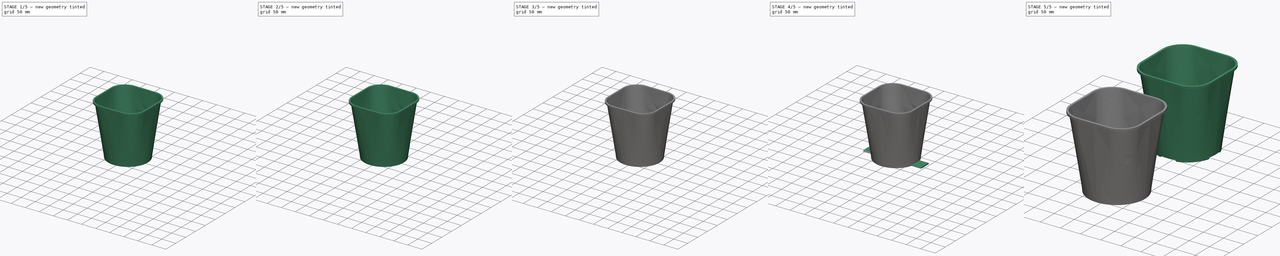
[diagram: build sequence overview — one tinted view per stage of 5, left to right]
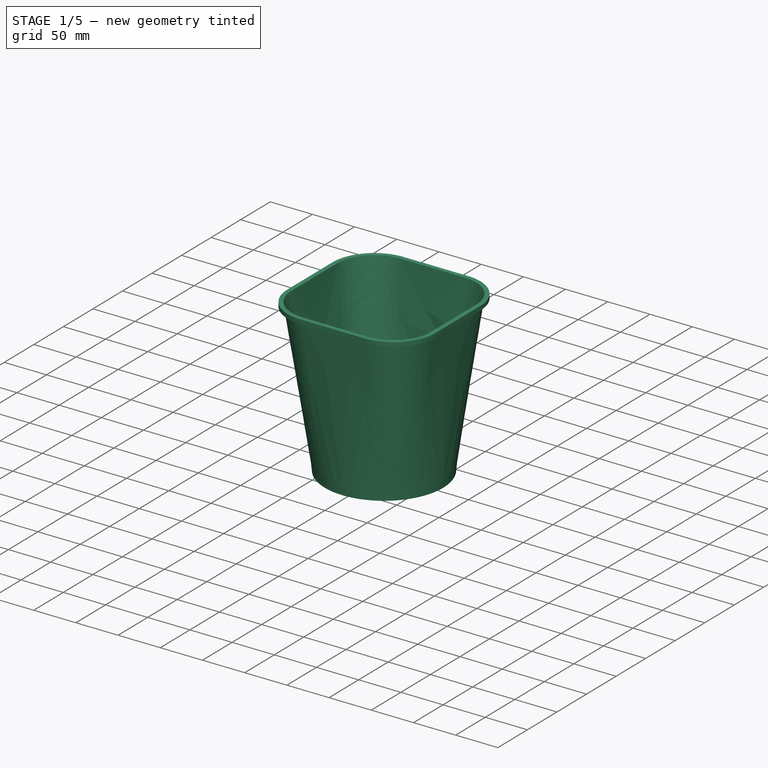
[diagram: stage 1 of 5 — iso view after this stage's code; geometry added in this stage tinted green]
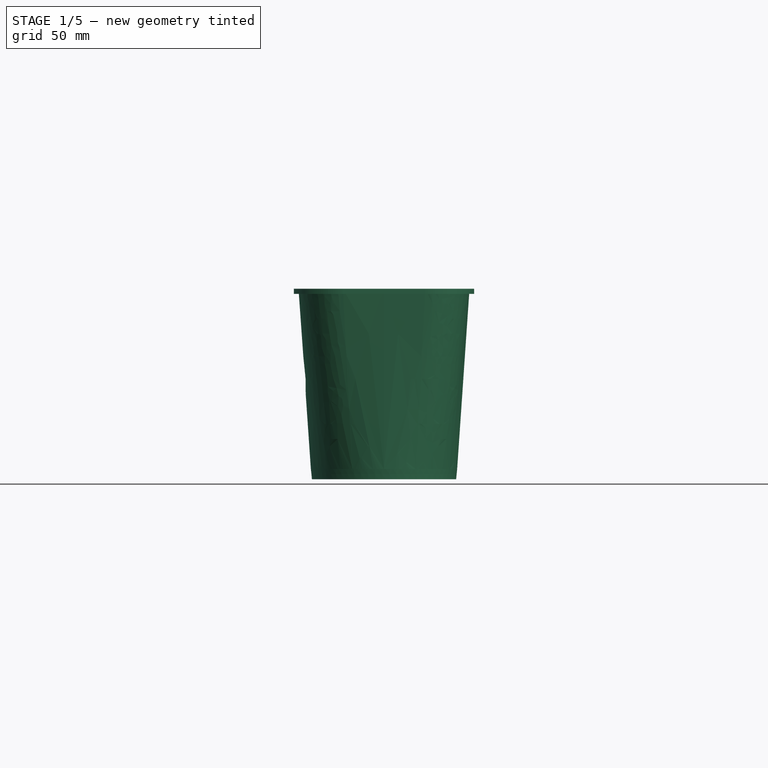
[diagram: stage 1 of 5 — front view after this stage's code; geometry added in this stage tinted green]
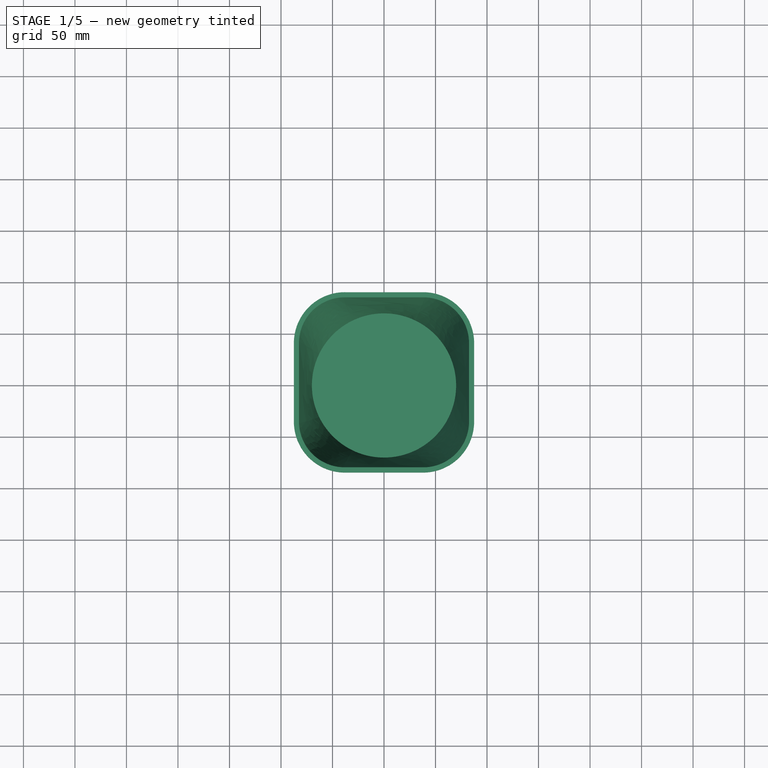
[diagram: stage 1 of 5 — top view after this stage's code; geometry added in this stage tinted green]
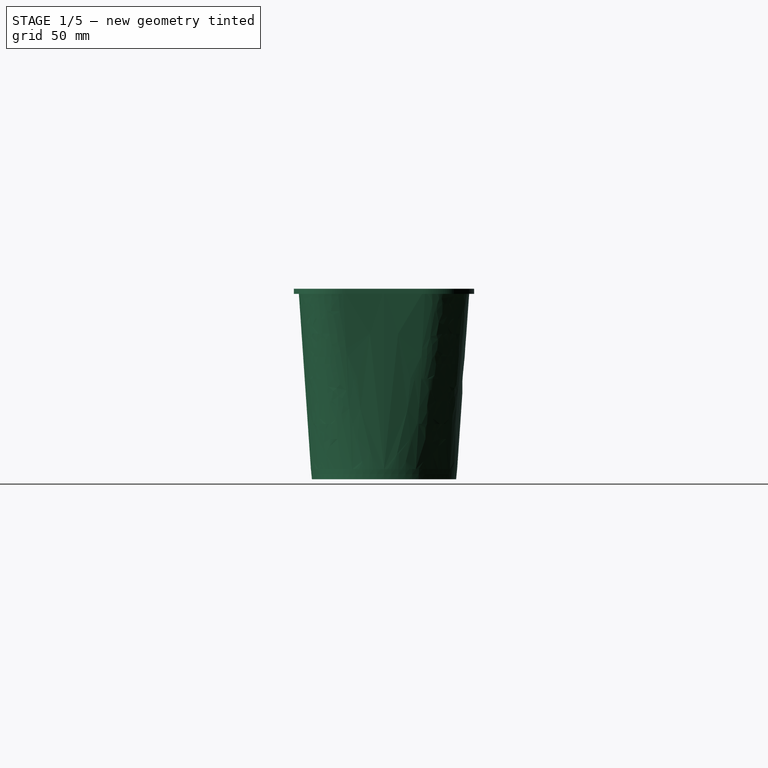
[diagram: stage 1 of 5 — right view after this stage's code; geometry added in this stage tinted green]
FCSTD DOCUMENT  (FreeCAD 0.20RUnknown)
Label: LargeFlowerPot_175x185
License: All rights reserved
LicenseURL: http://en.wikipedia.org/wiki/All_rights_reserved
objects: Sketcher::SketchObject×12, Part::Face×8, Part::Extrusion×7, Part::Cut×7, Part::Cone×6, Part::MultiCommon×2, Part::Fuse×2, Part::Loft×2, Part::Compound×2, Spreadsheet::Sheet×1
note: 48 computed .brp shape members not serialized (recipe doc carries the construction recipe); baked Part::Feature solids carry a one-line shape summary decoded from their .brp

FEATURE [Sketcher::SketchObject] Sketch002
  FullyConstrained = true
  MapMode = 5
  Placement = pos=(0,0,185) rot=(1,0,0;3.14159rad)
  expr: Constraints[35] = Spreadsheet.upper_flat
  expr: Constraints[36] = Spreadsheet.upper_flat
  expr: Constraints[37] = Spreadsheet.upper_width - Spreadsheet.wall * 2
  expr: Constraints[3] = Spreadsheet.upper_radius - Spreadsheet.wall
  sketch-geometry (12):
    g0: ArcOfCircle CenterX=-38.0431 CenterY=38.0431 CenterZ=0 NormalX=0 NormalY=0 NormalZ=1 AngleXU=0 Radius=44.5 StartAngle=1.61479 EndAngle=3.0976
    g1: ArcOfCircle CenterX=38.0431 CenterY=38.0431 CenterZ=0 NormalX=0 NormalY=0 NormalZ=1 AngleXU=0 Radius=44.5 StartAngle=0.0439906 EndAngle=1.52681
    g2: ArcOfCircle CenterX=38.0431 CenterY=-38.0431 CenterZ=0 NormalX=0 NormalY=0 NormalZ=1 AngleXU=0 Radius=44.5 StartAngle=4.75638 EndAngle=6.23919
    g3: ArcOfCircle CenterX=-38.0431 CenterY=-38.0431 CenterZ=0 NormalX=0 NormalY=0 NormalZ=1 AngleXU=0 Radius=44.5 StartAngle=3.18558 EndAngle=4.6684
    g4: LineSegment StartX=-82.5 StartY=40 StartZ=0 EndX=-82.5 EndY=-40 EndZ=0
    g5: LineSegment StartX=-40 StartY=-82.5 StartZ=0 EndX=40 EndY=-82.5 EndZ=0
    g6: LineSegment StartX=-82.5 StartY=40 StartZ=0 EndX=82.5 EndY=40 EndZ=0
    g7: LineSegment StartX=40 StartY=82.5 StartZ=0 EndX=40 EndY=-82.5 EndZ=0
    g8: LineSegment StartX=-40 StartY=82.5 StartZ=0 EndX=0 EndY=82.5 EndZ=0
    g9: LineSegment StartX=0 StartY=82.5 StartZ=0 EndX=40 EndY=82.5 EndZ=0
    g10: LineSegment StartX=82.5 StartY=-40 StartZ=0 EndX=82.5 EndY=0 EndZ=0
    g11: LineSegment StartX=82.5 StartY=0 StartZ=0 EndX=82.5 EndY=40 EndZ=0
  constraints (38):
    c: Equal(g3,g0)
    c: Equal(g3,g1)
    c: Equal(g3,g2)
    c: Radius(g3) = 44.5
    c: Vertical(g0,g3)
    c: Vertical(g1,g2)
    c: Horizontal(g0,g1)
    c: Horizontal(g2,g3)
    c: Coincident(g8,g0)
    c: Coincident(g9,g1)
    c: Coincident(g4,g0)
    c: Coincident(g4,g3)
    c: Vertical(g4)
    c: Coincident(g5,g3)
    c: Coincident(g5,g2)
    c: Horizontal(g5)
    c: Coincident(g10,g2)
    c: Coincident(g11,g1)
    c: Coincident(g6,g0)
    c: Coincident(g6,g1)
    c: Horizontal(g6)
    c: Coincident(g7,g1)
    c: Coincident(g7,g2)
    c: Vertical(g7)
    c: Equal(g7,g6)
    c: Coincident(g8,g9)
    c: Horizontal(g8)
    c: Horizontal(g9)
    c: Coincident(g10,g11)
    c: Vertical(g10)
    c: Vertical(g11)
    c: PointOnObject(g10,g-1)
    c: PointOnObject(g8,g-2)
    c: Equal(g8,g9)
    c: Equal(g11,g10)
    c: Distance(g0,g1) = 80
    c: Distance(g2,g1) = 80
    c: Distance(g6) = 165
FEATURE [Sketcher::SketchObject] Sketch003
  FullyConstrained = true
  MapMode = 5
  Placement = pos=(0,0,185) rot=(1,0,0;3.14159rad)
  expr: Constraints[24] = Spreadsheet.upper_width
  expr: Constraints[37] = Spreadsheet.upper_flat
  expr: Constraints[7] = Spreadsheet.upper_radius
  sketch-geometry (12):
    g0: ArcOfCircle CenterX=-38.0426 CenterY=38.0426 CenterZ=0 NormalX=0 NormalY=0 NormalZ=1 AngleXU=0 Radius=45 StartAngle=1.61431 EndAngle=3.09808
    g1: ArcOfCircle CenterX=38.0426 CenterY=38.0426 CenterZ=0 NormalX=0 NormalY=0 NormalZ=1 AngleXU=0 Radius=45 StartAngle=0.0435117 EndAngle=1.52728
    g2: ArcOfCircle CenterX=38.0426 CenterY=-38.0426 CenterZ=0 NormalX=0 NormalY=0 NormalZ=1 AngleXU=0 Radius=45 StartAngle=4.7559 EndAngle=6.23967
    g3: ArcOfCircle CenterX=-38.0426 CenterY=-38.0426 CenterZ=0 NormalX=0 NormalY=0 NormalZ=1 AngleXU=0 Radius=45 StartAngle=3.1851 EndAngle=4.66888
    g4: LineSegment StartX=40 StartY=-83 StartZ=0 EndX=-40 EndY=-83 EndZ=0
    g5: LineSegment StartX=-83 StartY=40 StartZ=0 EndX=-83 EndY=-40 EndZ=0
    g6: LineSegment StartX=40 StartY=83 StartZ=0 EndX=40 EndY=-83 EndZ=0
    g7: LineSegment StartX=-83 StartY=40 StartZ=0 EndX=83 EndY=40 EndZ=0
    g8: LineSegment StartX=83 StartY=40 StartZ=0 EndX=83 EndY=0 EndZ=0
    g9: LineSegment StartX=83 StartY=0 StartZ=0 EndX=83 EndY=-40 EndZ=0
    g10: LineSegment StartX=-40 StartY=83 StartZ=0 EndX=0 EndY=83 EndZ=0
    g11: LineSegment StartX=0 StartY=83 StartZ=0 EndX=40 EndY=83 EndZ=0
  constraints (38):
    c: Vertical(g0,g3)
    c: Vertical(g1,g2)
    c: Horizontal(g0,g1)
    c: Horizontal(g2,g3)
    c: Equal(g0,g1)
    c: Equal(g0,g2)
    c: Equal(g0,g3)
    c: Radius(g0) = 45
    c: Coincident(g10,g0)
    c: Coincident(g11,g1)
    c: Coincident(g8,g1)
    c: Coincident(g9,g2)
    c: Coincident(g4,g2)
    c: Coincident(g4,g3)
    c: Horizontal(g4)
    c: Coincident(g5,g0)
    c: Coincident(g5,g3)
    c: Vertical(g5)
    c: Equal(g5,g4)
    c: Coincident(g6,g1)
    c: Coincident(g6,g2)
    c: Coincident(g7,g0)
    c: Coincident(g7,g1)
    c: Equal(g7,g6)
    c: Distance(g7) = 166
    c: Coincident(g8,g9)
    c: Vertical(g8)
    c: Vertical(g9)
    c: Coincident(g10,g11)
    c: Horizontal(g10)
    c: Horizontal(g11)
    c: PointOnObject(g10,g-2)
    c: PointOnObject(g8,g-1)
    c: Equal(g8,g9)
    c: Equal(g11,g10)
    c: Horizontal(g1,g0)
    c: Vertical(g2,g1)
    c: Distance(g0,g1) = 80
FEATURE [Sketcher::SketchObject] Sketch004
  FullyConstrained = true
  MapMode = 5
  Placement = pos=(0,0,185) rot=(1,0,0;3.14159rad)
  expr: Constraints[22] = Spreadsheet.upper_width + Spreadsheet.upper_width_rim * 2
  expr: Constraints[3] = Spreadsheet.upper_radius + Spreadsheet.upper_width_rim
  sketch-geometry (12):
    g0: ArcOfCircle CenterX=-38 CenterY=38.0808 CenterZ=0 NormalX=0 NormalY=0 NormalZ=1 AngleXU=0 Radius=49.5 StartAngle=1.61121 EndAngle=3.14241
    g1: ArcOfCircle CenterX=38 CenterY=38.0808 CenterZ=0 NormalX=0 NormalY=0 NormalZ=1 AngleXU=0 Radius=49.5 StartAngle=6.28237 EndAngle=7.81357
    g2: ArcOfCircle CenterX=38 CenterY=-38 CenterZ=0 NormalX=0 NormalY=0 NormalZ=1 AngleXU=0 Radius=49.5 StartAngle=4.7528 EndAngle=6.28237
    g3: ArcOfCircle CenterX=-38 CenterY=-38 CenterZ=0 NormalX=0 NormalY=0 NormalZ=1 AngleXU=0 Radius=49.5 StartAngle=3.14078 EndAngle=4.7528
    g4: LineSegment StartX=40 StartY=-87.4596 StartZ=0 EndX=-36 EndY=-87.4596 EndZ=0
    g5: LineSegment StartX=-87.5 StartY=-37.9596 StartZ=0 EndX=-87.5 EndY=38.0404 EndZ=0
    g6: LineSegment StartX=-87.5 StartY=38.0404 StartZ=0 EndX=87.5 EndY=38.0404 EndZ=0
    g7: LineSegment StartX=40 StartY=87.5404 StartZ=0 EndX=40 EndY=-87.4596 EndZ=0
    g8: LineSegment StartX=87.5 StartY=38.0404 StartZ=0 EndX=87.5 EndY=0 EndZ=0
    g9: LineSegment StartX=87.5 StartY=0 StartZ=0 EndX=87.5 EndY=-38.0404 EndZ=0
    g10: LineSegment StartX=-40 StartY=87.5404 StartZ=0 EndX=0 EndY=87.5404 EndZ=0
    g11: LineSegment StartX=0 StartY=87.5404 StartZ=0 EndX=40 EndY=87.5404 EndZ=0
  constraints (38):
    c: Equal(g0,g1)
    c: Equal(g0,g2)
    c: Equal(g0,g3)
    c: Radius(g0) = 49.5
    c: Coincident(g10,g0)
    c: Coincident(g11,g1)
    c: Coincident(g8,g1)
    c: Coincident(g9,g2)
    c: Coincident(g4,g2)
    c: Coincident(g4,g3)
    c: Horizontal(g4)
    c: Coincident(g5,g3)
    c: Coincident(g5,g0)
    c: Vertical(g5)
    c: Equal(g5,g4)
    c: Coincident(g6,g0)
    c: Coincident(g6,g1)
    c: Coincident(g7,g1)
    c: Coincident(g7,g2)
    c: Vertical(g7)
    c: Horizontal(g6)
    c: Equal(g6,g7)
    c: Distance(g6) = 175
    c: Coincident(g8,g9)
    c: Vertical(g8)
    c: Vertical(g9)
    c: Coincident(g10,g11)
    c: Horizontal(g10)
    c: Horizontal(g11)
    c: Distance(g10,g11) = 80
    c: Equal(g11,g10)
    c: Equal(g8,g9)
    c: PointOnObject(g10,g-2)
    c: PointOnObject(g8,g-1)
    c: Horizontal(g0,g1)
    c: Horizontal(g2,g3)
    c: Vertical(g0,g3)
    c: Vertical(g2,g1)
FEATURE [Sketcher::SketchObject] Sketch006
  FullyConstrained = false
  MapMode = 5
  Placement = pos=(0,0,10) rot=(0,0,1;0rad)
  sketch-geometry (4):
    g0: Circle CenterX=0 CenterY=0 CenterZ=0 NormalX=0 NormalY=0 NormalZ=1 AngleXU=0 Radius=71
    g1: Circle CenterX=0 CenterY=0 CenterZ=0 NormalX=0 NormalY=0 NormalZ=1 AngleXU=0 Radius=70
    g2: GeomPoint X=71 Y=0 Z=0
    g3: GeomPoint X=70 Y=0 Z=0
  constraints (6):
    c: Coincident(g0,g-1)
    c: Coincident(g1,g0)
    c: PointOnObject(g2,g0)
    c: PointOnObject(g3,g1)
    c: PointOnObject(g3,g-1)
    c: PointOnObject(g2,g-1)
FEATURE [Part::Face] Face003
  FaceMakerClass = Part::FaceMakerBullseye
  Sources = -> [Sketch006]
FEATURE [Part::Cone] Cone002
  Angle = 360
  AttacherType = Attacher::AttachEngine3D
  Height = 10
  Radius1 = 70
  Radius2 = 71
FEATURE [Part::Cone] Cone003
  Angle = 360
  AttacherType = Attacher::AttachEngine3D
  Height = 9
  Placement = pos=(0,0,1) rot=(0,0,1;0rad)
  Radius1 = 69
  Radius2 = 70
FEATURE [Spreadsheet::Sheet] Spreadsheet
  cells = A1=Hole Diameter; B1(hole_diameter)==8mm; A2=Upper Width; B2(upper_width)==166mm; A3=Wall Thickness; B3(wall)==0.5mm; A4=Corner Arch; B4(corner_arch)==75°; A5=Upper Flat Width; B5(upper_flat)==80mm; A6=Upper Corner Radius; B6(upper_radius)==45mm; A7=Upper Width Rim; B7(upper_width_rim)==4.5mm
FEATURE [Part::Face] Face008
  FaceMakerClass = Part::FaceMakerBullseye
  Sources = -> [Sketch003]
FEATURE [Part::Loft] Loft
  Closed = false
  MaxDegree = 5
  Ruled = false
  Sections = -> [Face003,Face008]
  Solid = true
FEATURE [Sketcher::SketchObject] Sketch012
  ExternalGeometry = -> [Face003]
  FullyConstrained = true
  MapMode = 5
  Placement = pos=(0,0,10) rot=(0,0,1;0rad)
  Support = -> [Face003]
  sketch-geometry (3):
    g0: Circle CenterX=0 CenterY=0 CenterZ=0 NormalX=0 NormalY=0 NormalZ=1 AngleXU=0 Radius=70
    g1: GeomPoint X=70 Y=0 Z=0
    g2: GeomPoint X=70 Y=0 Z=0
  constraints (5):
    c: Coincident(g0,g-3)
    c: PointOnObject(g1,g-3)
    c: PointOnObject(g2,g0)
    c: Coincident(g1,g2)
    c: PointOnObject(g1,g-1)
FEATURE [Part::Face] Face009
  FaceMakerClass = Part::FaceMakerBullseye
  Sources = -> [Sketch012]
FEATURE [Part::Face] Face010
  FaceMakerClass = Part::FaceMakerBullseye
  Sources = -> [Sketch002]
FEATURE [Part::Loft] Loft001
  Closed = false
  MaxDegree = 5
  Ruled = false
  Sections = -> [Face009,Face010]
  Solid = true
FEATURE [Part::Cut] Cut008  label="Wall"
  Base = -> Loft
  Tool = -> Loft001
FEATURE [Sketcher::SketchObject] Sketch013
  FullyConstrained = true
  MapMode = 5
  Placement = pos=(0,0,185) rot=(1,0,0;3.14159rad)
  expr: Constraints[35] = Spreadsheet.upper_flat
  expr: Constraints[36] = Spreadsheet.upper_flat
  expr: Constraints[37] = Spreadsheet.upper_width - Spreadsheet.wall * 2
  expr: Constraints[3] = Spreadsheet.upper_radius - Spreadsheet.wall
  sketch-geometry (12):
    g0: ArcOfCircle CenterX=-38.0431 CenterY=38.0431 CenterZ=0 NormalX=0 NormalY=0 NormalZ=1 AngleXU=0 Radius=44.5 StartAngle=1.61479 EndAngle=3.0976
    g1: ArcOfCircle CenterX=38.0431 CenterY=38.0431 CenterZ=0 NormalX=0 NormalY=0 NormalZ=1 AngleXU=0 Radius=44.5 StartAngle=0.0439906 EndAngle=1.52681
    g2: ArcOfCircle CenterX=38.0431 CenterY=-38.0431 CenterZ=0 NormalX=0 NormalY=0 NormalZ=1 AngleXU=0 Radius=44.5 StartAngle=4.75638 EndAngle=6.23919
    g3: ArcOfCircle CenterX=-38.0431 CenterY=-38.0431 CenterZ=0 NormalX=0 NormalY=0 NormalZ=1 AngleXU=0 Radius=44.5 StartAngle=3.18558 EndAngle=4.6684
    g4: LineSegment StartX=-82.5 StartY=40 StartZ=0 EndX=-82.5 EndY=-40 EndZ=0
    g5: LineSegment StartX=-40 StartY=-82.5 StartZ=0 EndX=40 EndY=-82.5 EndZ=0
    g6: LineSegment StartX=-82.5 StartY=40 StartZ=0 EndX=82.5 EndY=40 EndZ=0
    g7: LineSegment StartX=40 StartY=82.5 StartZ=0 EndX=40 EndY=-82.5 EndZ=0
    g8: LineSegment StartX=-40 StartY=82.5 StartZ=0 EndX=0 EndY=82.5 EndZ=0
    g9: LineSegment StartX=0 StartY=82.5 StartZ=0 EndX=40 EndY=82.5 EndZ=0
    g10: LineSegment StartX=82.5 StartY=-40 StartZ=0 EndX=82.5 EndY=0 EndZ=0
    g11: LineSegment StartX=82.5 StartY=0 StartZ=0 EndX=82.5 EndY=40 EndZ=0
  constraints (38):
    c: Equal(g3,g0)
    c: Equal(g3,g1)
    c: Equal(g3,g2)
    c: Radius(g3) = 44.5
    c: Vertical(g0,g3)
    c: Vertical(g1,g2)
    c: Horizontal(g0,g1)
    c: Horizontal(g2,g3)
    c: Coincident(g8,g0)
    c: Coincident(g9,g1)
    c: Coincident(g4,g0)
    c: Coincident(g4,g3)
    c: Vertical(g4)
    c: Coincident(g5,g3)
    c: Coincident(g5,g2)
    c: Horizontal(g5)
    c: Coincident(g10,g2)
    c: Coincident(g11,g1)
    c: Coincident(g6,g0)
    c: Coincident(g6,g1)
    c: Horizontal(g6)
    c: Coincident(g7,g1)
    c: Coincident(g7,g2)
    c: Vertical(g7)
    c: Equal(g7,g6)
    c: Coincident(g8,g9)
    c: Horizontal(g8)
    c: Horizontal(g9)
    c: Coincident(g10,g11)
    c: Vertical(g10)
    c: Vertical(g11)
    c: PointOnObject(g10,g-1)
    c: PointOnObject(g8,g-2)
    c: Equal(g8,g9)
    c: Equal(g11,g10)
    c: Distance(g0,g1) = 80
    c: Distance(g2,g1) = 80
    c: Distance(g6) = 165
FEATURE [Part::Face] Face011
  FaceMakerClass = Part::FaceMakerBullseye
  Sources = -> [Sketch013,Sketch004]
FEATURE [Part::Extrusion] Extrude007  label="Brim"
  Base = -> Face011
  Dir = (0,0,1)
  DirMode = 2
  FaceMakerClass = Part::FaceMakerBullseye
  LengthFwd = -5
  LengthRev = 0
  Solid = false
  Symmetric = false
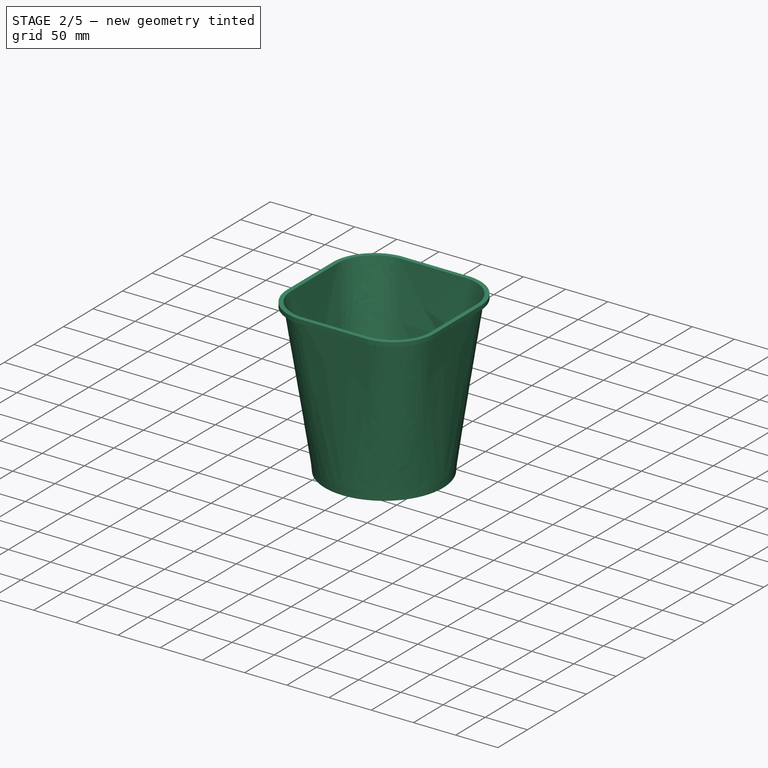
[diagram: stage 2 of 5 — iso view after this stage's code; geometry added in this stage tinted green]
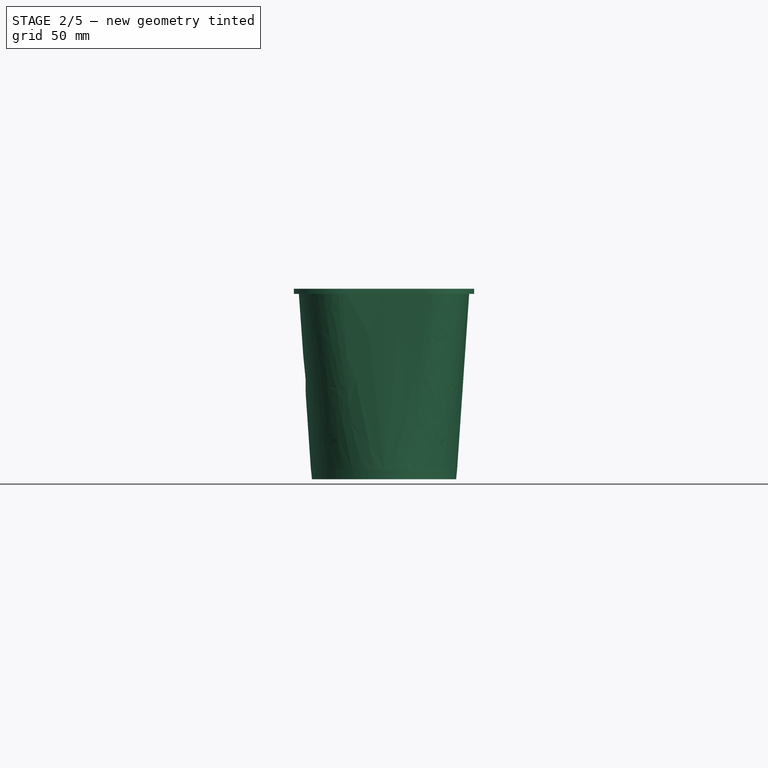
[diagram: stage 2 of 5 — front view after this stage's code; geometry added in this stage tinted green]
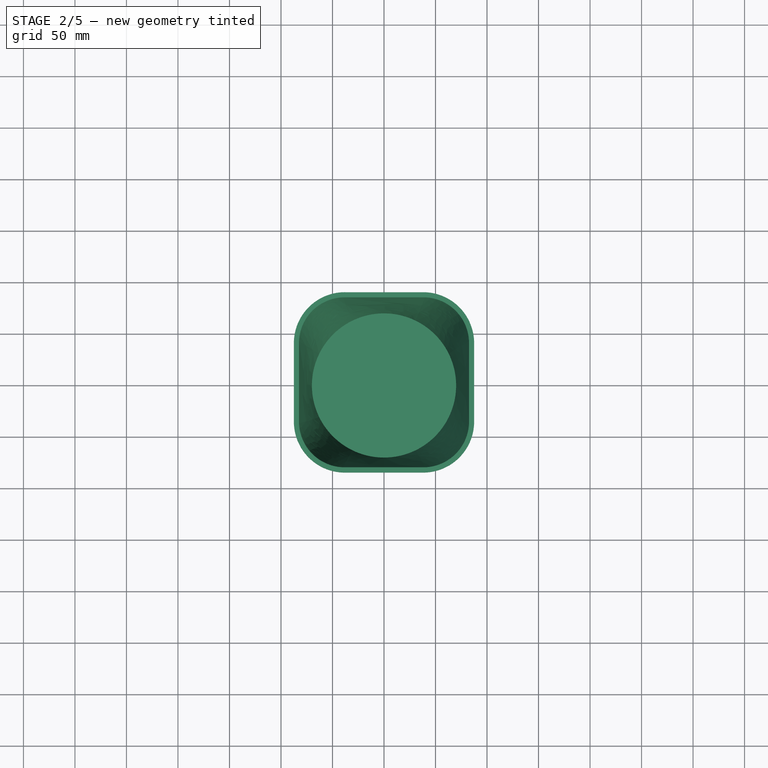
[diagram: stage 2 of 5 — top view after this stage's code; geometry added in this stage tinted green]
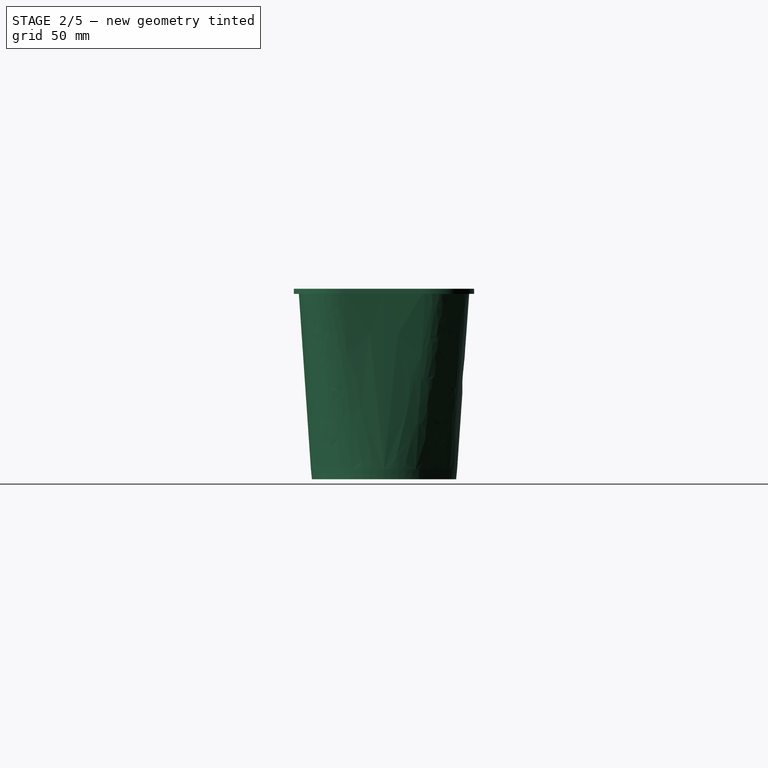
[diagram: stage 2 of 5 — right view after this stage's code; geometry added in this stage tinted green]
FEATURE [Part::Cone] Cone001
  Angle = 360
  AttacherType = Attacher::AttachEngine3D
  Height = 9
  Placement = pos=(0,0,1) rot=(0,0,1;0rad)
  Radius1 = 69
  Radius2 = 70
FEATURE [Part::Cut] Cut002
  Base = -> Cone002
  Tool = -> Cone003
FEATURE [Sketcher::SketchObject] Sketch008
  FullyConstrained = true
  MapMode = 5
  Placement = pos=(0,0,1) rot=(0,0,1;0rad)
  Support = -> [Cut002]
  sketch-geometry (37):
    g0: Circle CenterX=0 CenterY=0 CenterZ=0 NormalX=0 NormalY=0 NormalZ=1 AngleXU=0 Radius=35
    g1: Circle CenterX=35 CenterY=0 CenterZ=0 NormalX=0 NormalY=0 NormalZ=1 AngleXU=0 Radius=5
    g2: Circle CenterX=0 CenterY=35 CenterZ=0 NormalX=0 NormalY=0 NormalZ=1 AngleXU=0 Radius=5
    g3: Circle CenterX=-35 CenterY=0 CenterZ=0 NormalX=0 NormalY=0 NormalZ=1 AngleXU=0 Radius=5
    g4: Circle CenterX=0 CenterY=-35 CenterZ=0 NormalX=0 NormalY=0 NormalZ=1 AngleXU=0 Radius=5
    g5: Circle CenterX=0 CenterY=0 CenterZ=0 NormalX=0 NormalY=0 NormalZ=1 AngleXU=0 Radius=55
    g6: Circle CenterX=0 CenterY=55 CenterZ=0 NormalX=0 NormalY=0 NormalZ=1 AngleXU=0 Radius=5
    g7: Circle CenterX=55 CenterY=0 CenterZ=0 NormalX=0 NormalY=0 NormalZ=1 AngleXU=0 Radius=5
    g8: Circle CenterX=0 CenterY=-55 CenterZ=0 NormalX=0 NormalY=0 NormalZ=1 AngleXU=0 Radius=5
    g9: Circle CenterX=-55 CenterY=0 CenterZ=0 NormalX=0 NormalY=0 NormalZ=1 AngleXU=0 Radius=5
    g10: Circle CenterX=-24.7487 CenterY=24.7487 CenterZ=0 NormalX=0 NormalY=0 NormalZ=1 AngleXU=0 Radius=5
    g11: Circle CenterX=-24.7487 CenterY=-24.7487 CenterZ=0 NormalX=0 NormalY=0 NormalZ=1 AngleXU=0 Radius=5
    g12: Circle CenterX=24.7487 CenterY=-24.7487 CenterZ=0 NormalX=0 NormalY=0 NormalZ=1 AngleXU=0 Radius=5
    g13: Circle CenterX=24.7487 CenterY=24.7487 CenterZ=0 NormalX=0 NormalY=0 NormalZ=1 AngleXU=0 Radius=5
    g14: LineSegment StartX=-24.7487 StartY=24.7487 StartZ=0 EndX=24.7487 EndY=-24.7487 EndZ=0
    g15: LineSegment StartX=24.7487 StartY=24.7487 StartZ=0 EndX=-24.7487 EndY=-24.7487 EndZ=0
    g16: LineSegment StartX=-55 StartY=0 StartZ=0 EndX=-47.6314 EndY=-27.5 EndZ=0
    g17: LineSegment StartX=-47.6314 StartY=-27.5 StartZ=0 EndX=-27.5 EndY=-47.6314 EndZ=0
    g18: LineSegment StartX=-27.5 StartY=-47.6314 StartZ=0 EndX=-3.6e-15 EndY=-55 EndZ=0
    g19: LineSegment StartX=-3.6e-15 StartY=-55 StartZ=0 EndX=27.5 EndY=-47.6314 EndZ=0
    g20: LineSegment StartX=27.5 StartY=-47.6314 StartZ=0 EndX=47.6314 EndY=-27.5 EndZ=0
    g21: LineSegment StartX=47.6314 StartY=-27.5 StartZ=0 EndX=55 EndY=-7.1e-15 EndZ=0
    g22: LineSegment StartX=55 StartY=-7.1e-15 StartZ=0 EndX=47.6314 EndY=27.5 EndZ=0
    g23: LineSegment StartX=47.6314 StartY=27.5 StartZ=0 EndX=27.5 EndY=47.6314 EndZ=0
    g24: LineSegment StartX=27.5 StartY=47.6314 StartZ=0 EndX=0 EndY=55 EndZ=0
    g25: LineSegment StartX=0 StartY=55 StartZ=0 EndX=-27.5 EndY=47.6314 EndZ=0
    g26: LineSegment StartX=-27.5 StartY=47.6314 StartZ=0 EndX=-47.6314 EndY=27.5 EndZ=0
    g27: LineSegment StartX=-47.6314 StartY=27.5 StartZ=0 EndX=-55 EndY=0 EndZ=0
    g28: Circle CenterX=0 CenterY=0 CenterZ=0 NormalX=0 NormalY=0 NormalZ=1 AngleXU=0 Radius=55
    g29: Circle CenterX=-47.6314 CenterY=27.5 CenterZ=0 NormalX=0 NormalY=0 NormalZ=1 AngleXU=0 Radius=5
    g30: Circle CenterX=-27.5 CenterY=47.6314 CenterZ=0 NormalX=0 NormalY=0 NormalZ=1 AngleXU=0 Radius=5
    g31: Circle CenterX=27.5 CenterY=47.6314 CenterZ=0 NormalX=0 NormalY=0 NormalZ=1 AngleXU=0 Radius=5
    g32: Circle CenterX=47.6314 CenterY=27.5 CenterZ=0 NormalX=0 NormalY=0 NormalZ=1 AngleXU=0 Radius=5
    g33: Circle CenterX=47.6314 CenterY=-27.5 CenterZ=0 NormalX=0 NormalY=0 NormalZ=1 AngleXU=0 Radius=5
    g34: Circle CenterX=27.5 CenterY=-47.6314 CenterZ=0 NormalX=0 NormalY=0 NormalZ=1 AngleXU=0 Radius=5
    g35: Circle CenterX=-27.5 CenterY=-47.6314 CenterZ=0 NormalX=0 NormalY=0 NormalZ=1 AngleXU=0 Radius=5
    g36: Circle CenterX=-47.6314 CenterY=-27.5 CenterZ=0 NormalX=0 NormalY=0 NormalZ=1 AngleXU=0 Radius=5
  constraints (83):
    c: Coincident(g0,g-1)
    c: Diameter(g0) = 70
    c: PointOnObject(g1,g-1)
    c: PointOnObject(g2,g-2)
    c: PointOnObject(g3,g-1)
    c: PointOnObject(g4,g-2)
    c: Diameter(g4) = 10
    c: Diameter(g1) = 10
    c: Diameter(g2) = 10
    c: Diameter(g3) = 10
    c: PointOnObject(g3,g0)
    c: PointOnObject(g4,g0)
    c: PointOnObject(g1,g0)
    c: PointOnObject(g2,g0)
    c: Coincident(g5,g0)
    c: Diameter(g5) = 110
    c: PointOnObject(g6,g-2)
    c: PointOnObject(g7,g-1)
    c: PointOnObject(g8,g-2)
    c: PointOnObject(g9,g-1)
    c: Diameter(g9) = 10
    c: Diameter(g6) = 10
    c: Diameter(g7) = 10
    c: Diameter(g8) = 10
    c: PointOnObject(g9,g5)
    c: PointOnObject(g6,g5)
    c: PointOnObject(g7,g5)
    c: PointOnObject(g8,g5)
    c: PointOnObject(g10,g0)
    c: PointOnObject(g11,g0)
    c: PointOnObject(g12,g0)
    c: PointOnObject(g13,g0)
    c: Diameter(g13) = 10
    c: Diameter(g12) = 10
    c: Diameter(g11) = 10
    c: Diameter(g10) = 10
    c: Coincident(g14,g10)
    c: Coincident(g14,g12)
    c: PointOnObject(g15,g0)
    c: PointOnObject(g15,g0)
    c: PointOnObject(g0,g14)
    c: PointOnObject(g0,g15)
    c: PointOnObject(g13,g15)
    c: PointOnObject(g11,g15)
    c: Angle(g-2,g14) = 0.785398
    c: Angle(g15,g14) = 1.5708
    c: Coincident(g16,g17)
    c: Coincident(g17,g18)
    c: Coincident(g18,g19)
    c: Coincident(g19,g20)
    c: Coincident(g20,g21)
    c: Coincident(g21,g22)
    c: Coincident(g22,g23)
    c: Coincident(g23,g24)
    c: Coincident(g24,g25)
    c: Coincident(g25,g26)
    c: Coincident(g26,g27)
    c: Coincident(g27,g16)
    c: Equal(g16, g17-g27) x11
    c: PointOnObject(g16,g28)
    c: PointOnObject(g17,g28)
    c: PointOnObject(g18,g28)
    c: PointOnObject(g19,g28)
    c: PointOnObject(g20,g28)
    c: PointOnObject(g21,g28)
    c: PointOnObject(g22,g28)
    c: PointOnObject(g23,g28)
    c: PointOnObject(g24,g28)
    c: PointOnObject(g25,g28)
    c: PointOnObject(g26,g28)
    c: PointOnObject(g27,g28)
    c: Coincident(g28,g0)
    c: Coincident(g27,g9)
    c: Coincident(g29,g26)
    c: Coincident(g30,g25)
    c: Coincident(g31,g23)
    c: Coincident(g32,g22)
    c: Coincident(g33,g20)
    c: Coincident(g34,g19)
    c: Coincident(g35,g17)
    c: Coincident(g36,g16)
    c: Equal(g29, g30-g36) x7
    c: Diameter(g29) = 10
FEATURE [Part::Extrusion] Extrude002
  Base = -> Sketch008
  Dir = (0,0,1)
  DirMode = 2
  FaceMakerClass = Part::FaceMakerBullseye
  LengthFwd = -10
  LengthRev = 0
  Solid = true
  Symmetric = false
FEATURE [Part::Cut] Cut003  label="Simple Bottom"
  Base = -> Cut002
  Tool = -> Extrude002
FEATURE [Part::Compound] Compound001  label="FlatBottom"
  Links = -> [Cut008,Extrude007,Cut003]
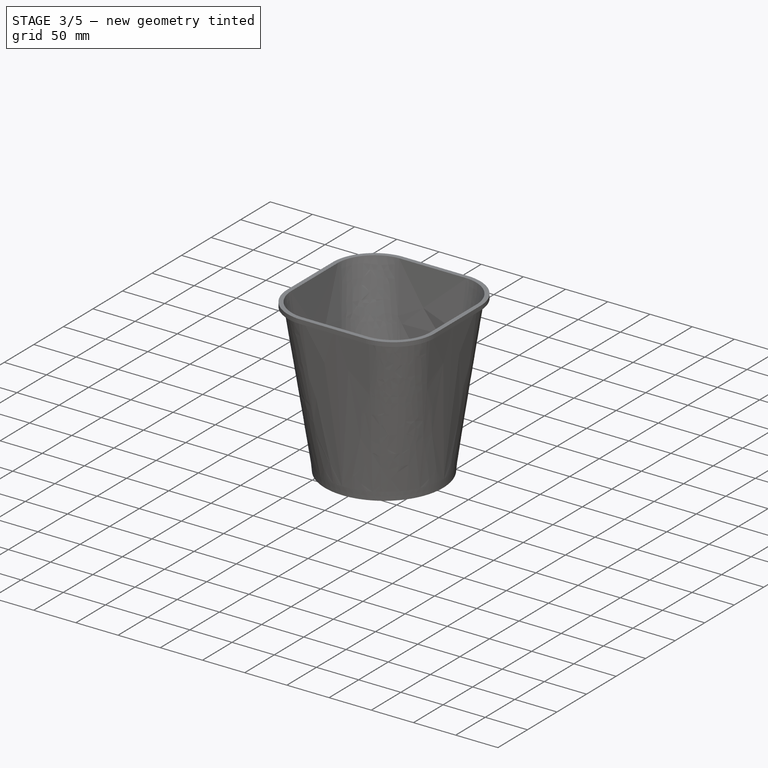
[diagram: stage 3 of 5 — iso view after this stage's code; geometry added in this stage tinted green]
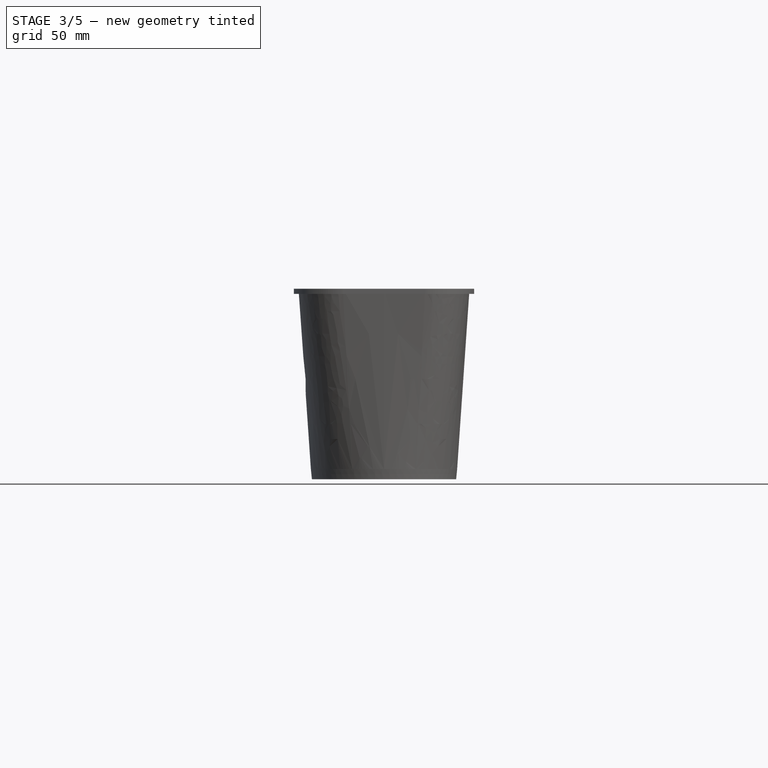
[diagram: stage 3 of 5 — front view after this stage's code; geometry added in this stage tinted green]
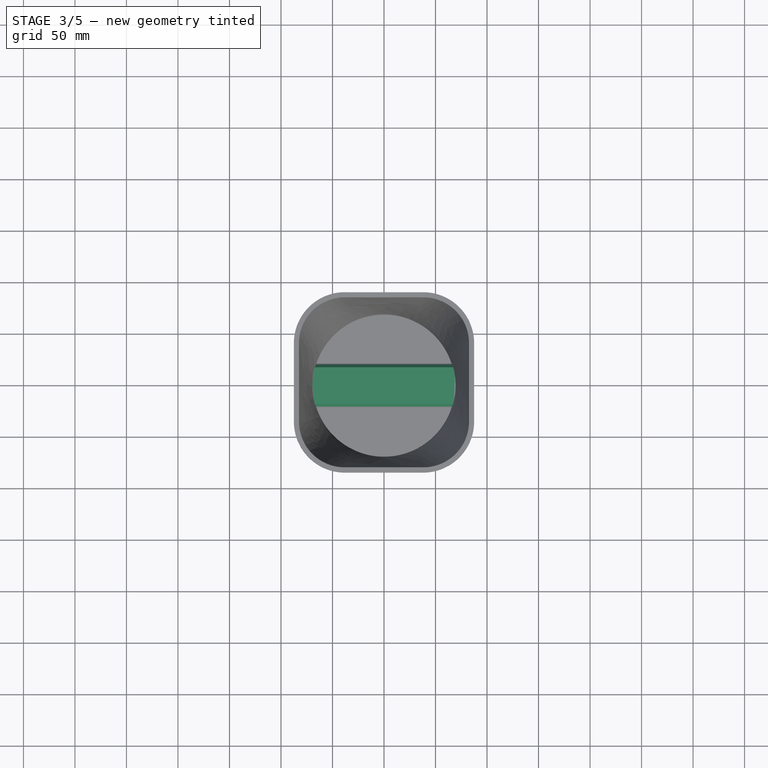
[diagram: stage 3 of 5 — top view after this stage's code; geometry added in this stage tinted green]
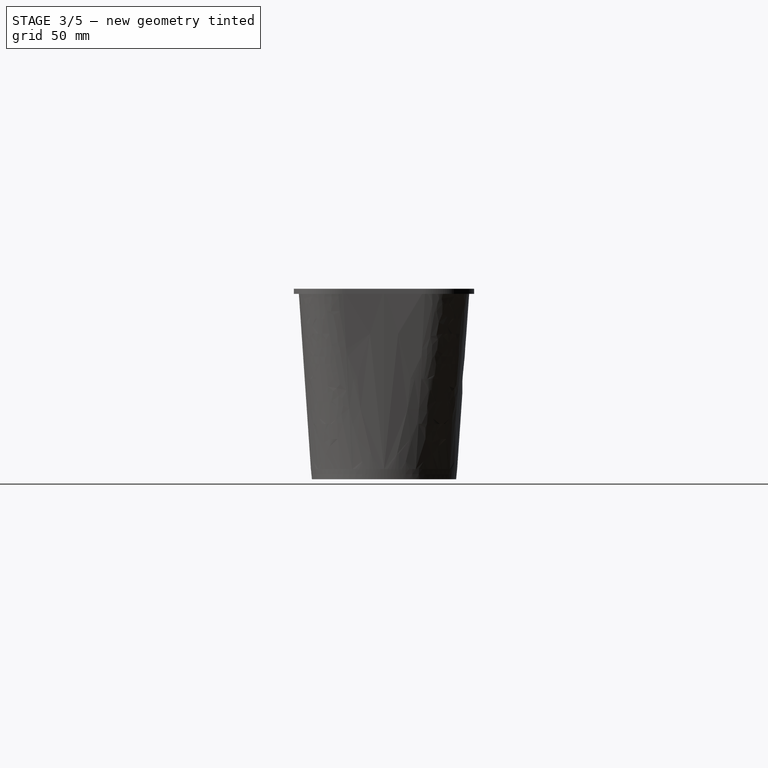
[diagram: stage 3 of 5 — right view after this stage's code; geometry added in this stage tinted green]
FEATURE [Sketcher::SketchObject] Sketch
  FullyConstrained = true
  sketch-geometry (1):
    g0: Circle CenterX=0 CenterY=0 CenterZ=0 NormalX=0 NormalY=0 NormalZ=1 AngleXU=0 Radius=70
  constraints (2):
    c: Coincident(g0,g-1)
    c: Diameter(g0) = 140
FEATURE [Part::Cone] Cone
  Angle = 360
  AttacherType = Attacher::AttachEngine3D
  Height = 10
  Radius1 = 70
  Radius2 = 71
FEATURE [Part::Extrusion] Extrude005
  Base = -> Face007
  Dir = (0,1,2e-16)
  DirMode = 2
  FaceMakerClass = Part::FaceMakerBullseye
  LengthFwd = 100
  LengthRev = 100
  Placement = pos=(0,0,0) rot=(0,0,1;1.5708rad)
  Solid = false
  Symmetric = false
FEATURE [Part::Cone] Cone004
  Angle = 360
  AttacherType = Attacher::AttachEngine3D
  Height = 10
  Radius1 = 70
  Radius2 = 71
FEATURE [Part::MultiCommon] Common
  Shapes = -> [Cone004,Extrude005]
FEATURE [Part::Cut] Cut
  Base = -> Cone
  Tool = -> Cone001
FEATURE [Part::Fuse] Fusion
  Base = -> Common
  Tool = -> Cut
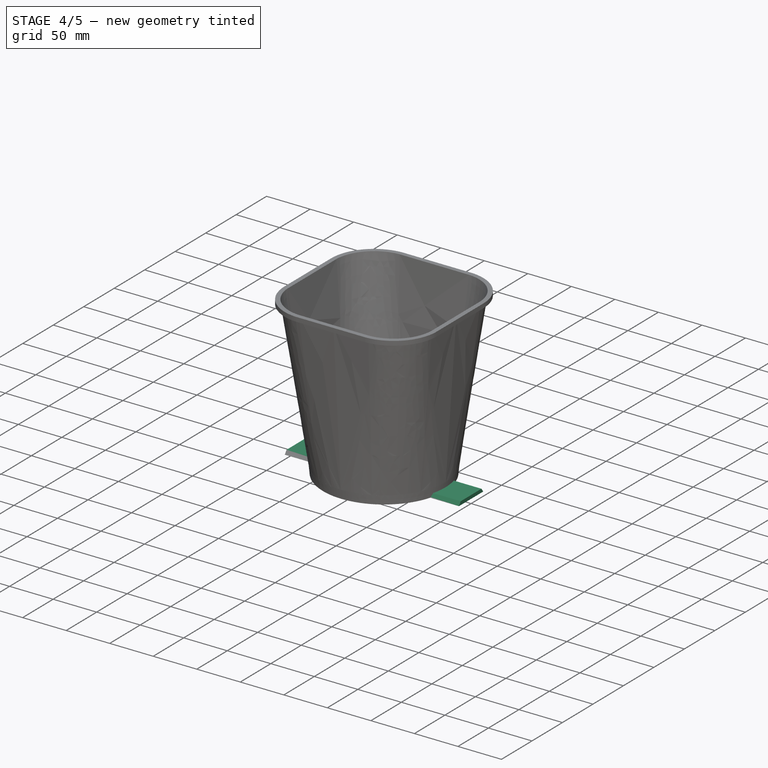
[diagram: stage 4 of 5 — iso view after this stage's code; geometry added in this stage tinted green]
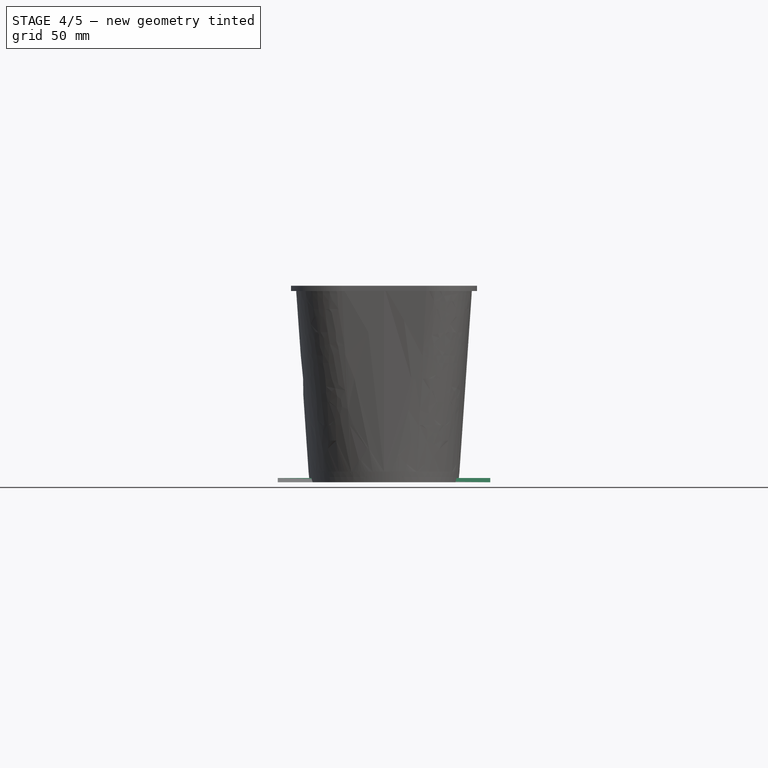
[diagram: stage 4 of 5 — front view after this stage's code; geometry added in this stage tinted green]
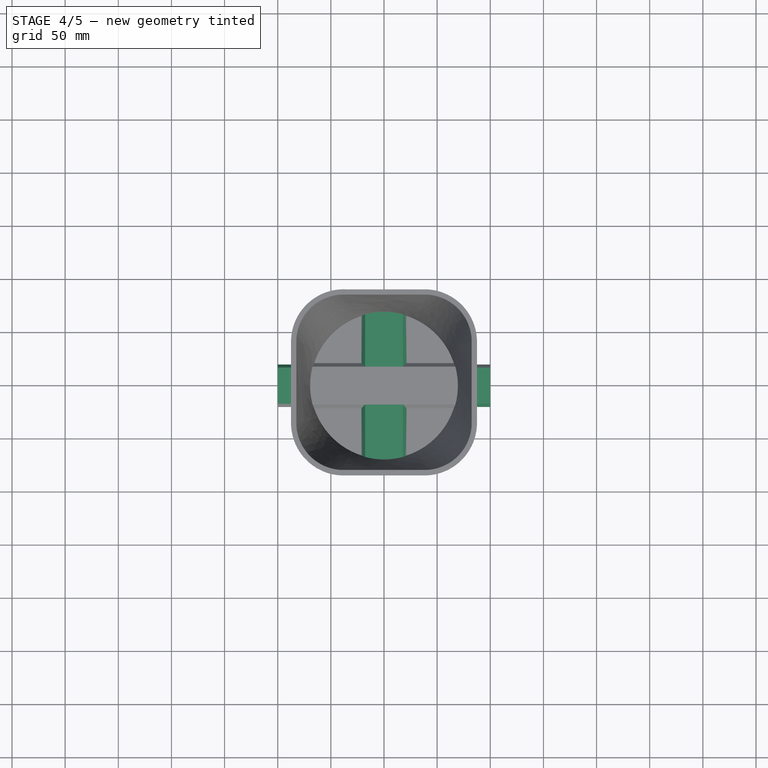
[diagram: stage 4 of 5 — top view after this stage's code; geometry added in this stage tinted green]
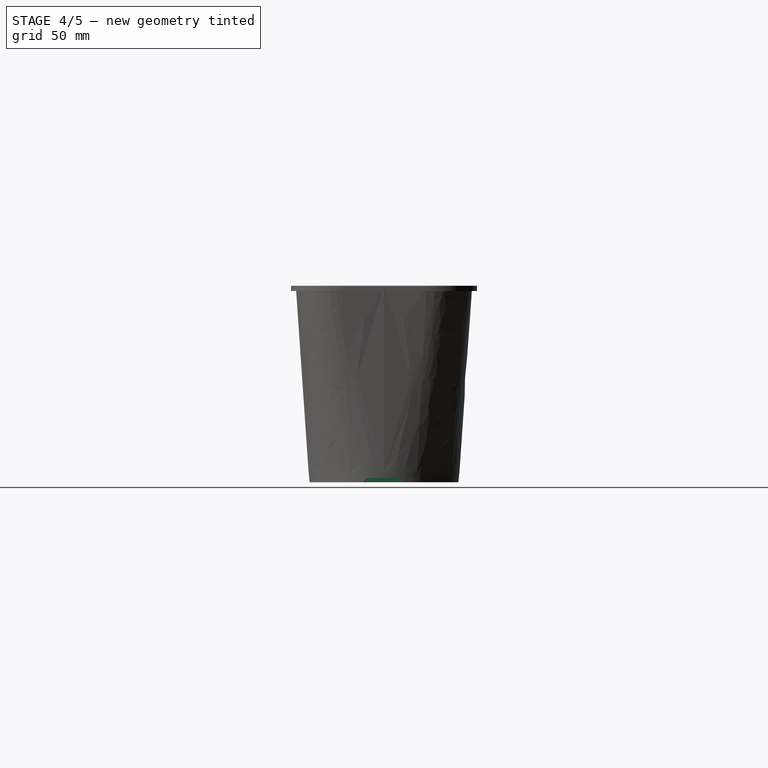
[diagram: stage 4 of 5 — right view after this stage's code; geometry added in this stage tinted green]
FEATURE [Sketcher::SketchObject] Sketch009
  ExternalGeometry = -> [Sketch006]
  FullyConstrained = true
  MapMode = 5
  Placement = pos=(0,0,10) rot=(0,0,1;0rad)
  Support = -> [Face003]
  sketch-geometry (2):
    g0: GeomPoint X=-70 Y=0 Z=0
    g1: Circle CenterX=0 CenterY=0 CenterZ=0 NormalX=0 NormalY=0 NormalZ=1 AngleXU=0 Radius=70
  constraints (4):
    c: PointOnObject(g0,g-3)
    c: Coincident(g1,g-3)
    c: PointOnObject(g0,g1)
    c: PointOnObject(g0,g-1)
FEATURE [Sketcher::SketchObject] Sketch010
  FullyConstrained = true
  Placement = pos=(0,0,0) rot=(1,0,0;1.5708rad)
  sketch-geometry (8):
    g0: LineSegment StartX=-20 StartY=0 StartZ=0 EndX=20 EndY=0 EndZ=0
    g1: LineSegment StartX=20 StartY=0 StartZ=0 EndX=17 EndY=4 EndZ=0
    g2: LineSegment StartX=17 StartY=4 StartZ=0 EndX=-17 EndY=4 EndZ=0
    g3: LineSegment StartX=-17 StartY=4 StartZ=0 EndX=-20 EndY=0 EndZ=0
    g4: LineSegment StartX=0 StartY=-6 StartZ=0 EndX=20 EndY=-6 EndZ=0
    g5: LineSegment StartX=0 StartY=-6 StartZ=0 EndX=-20 EndY=-6 EndZ=0
    g6: LineSegment StartX=0 StartY=-3 StartZ=0 EndX=-17 EndY=-3 EndZ=0
    g7: LineSegment StartX=0 StartY=-3 StartZ=0 EndX=17 EndY=-3 EndZ=0
  constraints (26):
    c: PointOnObject(g0,g-1)
    c: PointOnObject(g0,g-1)
    c: Coincident(g0,g1)
    c: Coincident(g1,g2)
    c: Horizontal(g2)
    c: Coincident(g2,g3)
    c: Coincident(g3,g0)
    c: PointOnObject(g4,g-2)
    c: Horizontal(g4)
    c: Coincident(g5,g4)
    c: Horizontal(g5)
    c: Equal(g5,g4)
    c: DistanceX(g5,g4) = 40
    c: Vertical(g4,g0)
    c: Vertical(g0,g5)
    c: PointOnObject(g6,g-2)
    c: Horizontal(g6)
    c: Coincident(g7,g6)
    c: Horizontal(g7)
    c: Equal(g6,g7)
    c: DistanceX(g6,g7) = 34
    c: Vertical(g1,g7)
    c: Vertical(g2,g6)
    c: DistanceY(g0,g1) = 4
    c: DistanceY(g6,g-1) = 3
    c: DistanceY(g4,g-1) = 6
FEATURE [Part::Face] Face006
  FaceMakerClass = Part::FaceMakerBullseye
  Sources = -> [Sketch010]
FEATURE [Sketcher::SketchObject] Sketch011
  ExternalGeometry = -> [Face006]
  FullyConstrained = true
  MapMode = 5
  Placement = pos=(0,0,0) rot=(0,0.707107,0.707107;3.14159rad)
  Support = -> [Face006]
  sketch-geometry (7):
    g0: LineSegment StartX=-22 StartY=0 StartZ=0 EndX=-17.8 EndY=5.6 EndZ=0
    g1: LineSegment StartX=-17.8 StartY=5.6 StartZ=0 EndX=17.8 EndY=5.6 EndZ=0
    g2: LineSegment StartX=17.8 StartY=5.6 StartZ=0 EndX=22 EndY=0 EndZ=0
    g3: LineSegment StartX=22 StartY=0 StartZ=0 EndX=-22 EndY=0 EndZ=0
    g4: LineSegment StartX=-20 StartY=0 StartZ=0 EndX=-21.28 EndY=0.96 EndZ=0
    g5: LineSegment StartX=20 StartY=0 StartZ=0 EndX=21.28 EndY=0.96 EndZ=0
    g6: LineSegment StartX=-17 StartY=4 StartZ=0 EndX=-17 EndY=5.6 EndZ=0
  constraints (21):
    c: PointOnObject(g0,g-1)
    c: Coincident(g0,g1)
    c: Horizontal(g1)
    c: Coincident(g1,g2)
    c: PointOnObject(g2,g-1)
    c: Coincident(g2,g3)
    c: Coincident(g3,g0)
    c: PointOnObject(g4,g0)
    c: PointOnObject(g5,g2)
    c: Angle(g5,g2) = 1.5708
    c: Angle(g-4,g5) = 1.5708
    c: Distance(g5,g5) = 1.6
    c: Angle(g4,g-3) = 1.5708
    c: Angle(g0,g4) = 1.5708
    c: Equal(g5,g4)
    c: Coincident(g6,g-3)
    c: PointOnObject(g6,g1)
    c: Vertical(g6)
    c: Equal(g5,g6)
    c: Coincident(g4,g-3)
    c: Coincident(g5,g-4)
FEATURE [Part::Face] Face007
  FaceMakerClass = Part::FaceMakerBullseye
  Sources = -> [Sketch011]
FEATURE [Part::Extrusion] Extrude003
  Base = -> Face007
  Dir = (0,1,2e-16)
  DirMode = 2
  FaceMakerClass = Part::FaceMakerBullseye
  LengthFwd = 100
  LengthRev = 100
  Solid = false
  Symmetric = false
FEATURE [Part::Extrusion] Extrude006
  Base = -> Face006
  Dir = (0,1,2e-16)
  DirMode = 2
  FaceMakerClass = Part::FaceMakerBullseye
  LengthFwd = 100
  LengthRev = 100
  Placement = pos=(0,0,0) rot=(0,0,1;1.5708rad)
  Solid = false
  Symmetric = false
FEATURE [Part::Cone] Cone005
  Angle = 360
  AttacherType = Attacher::AttachEngine3D
  Height = 10
  Radius1 = 70
  Radius2 = 71
FEATURE [Part::MultiCommon] Common001
  Shapes = -> [Extrude003,Cone005]
FEATURE [Part::Fuse] Fusion001
  Base = -> Common001
  Tool = -> Fusion
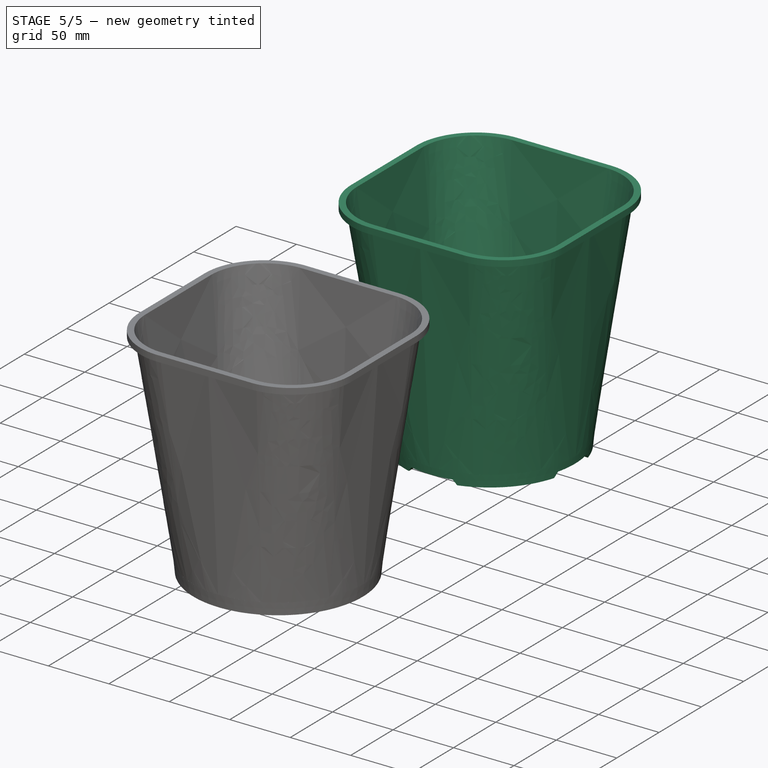
[diagram: stage 5 of 5 — iso view after this stage's code; geometry added in this stage tinted green]
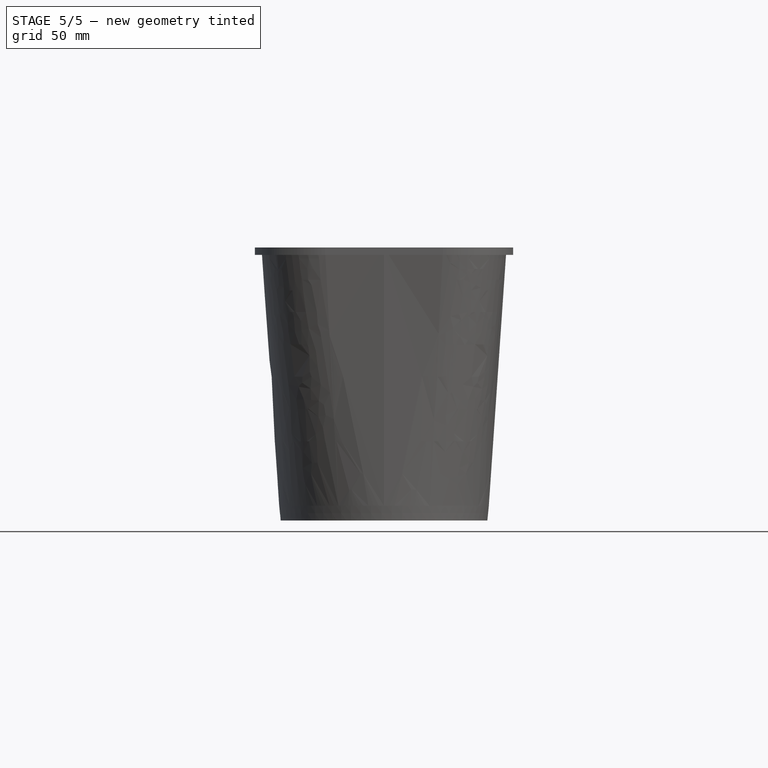
[diagram: stage 5 of 5 — front view after this stage's code; geometry added in this stage tinted green]
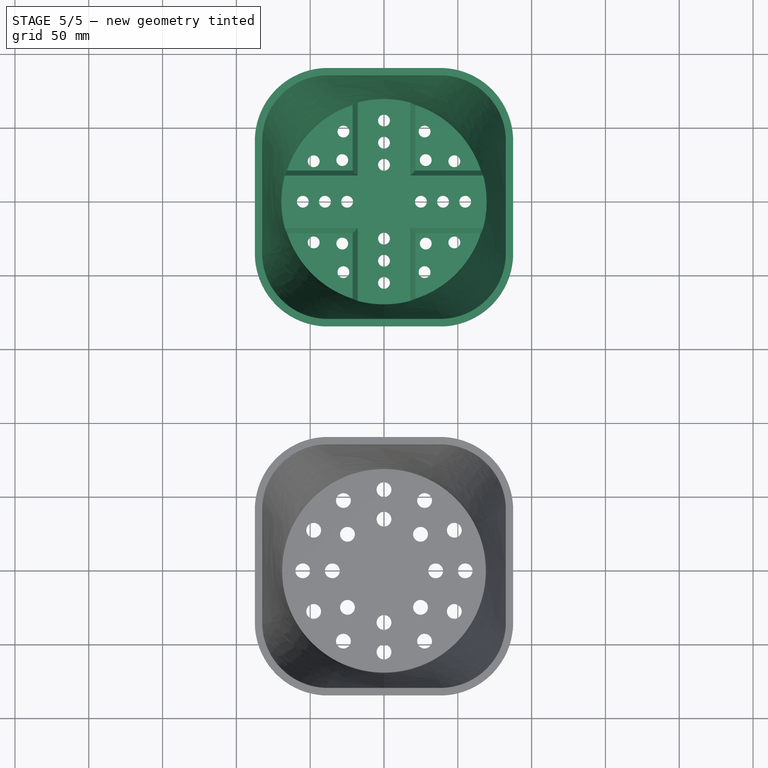
[diagram: stage 5 of 5 — top view after this stage's code; geometry added in this stage tinted green]
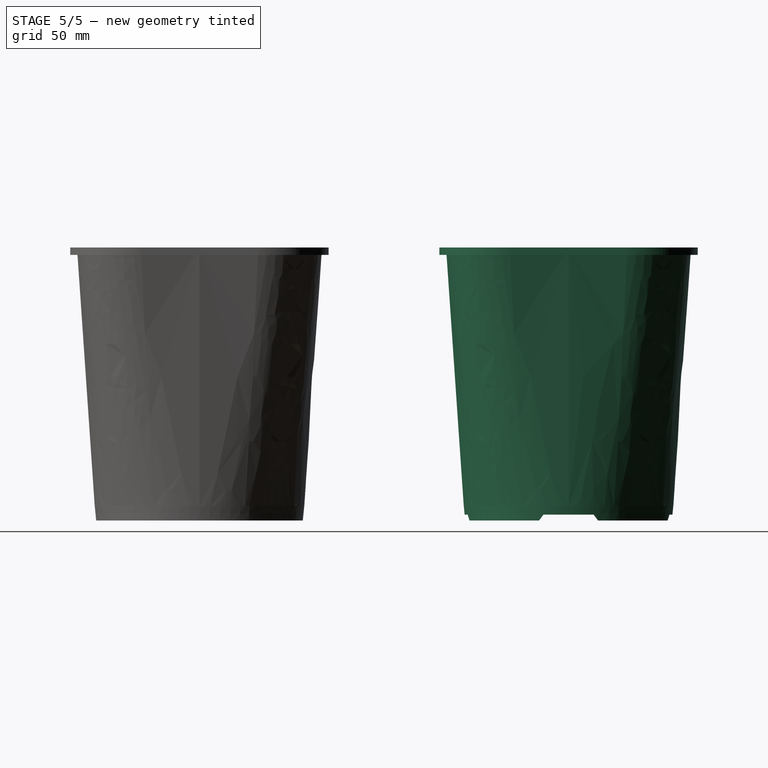
[diagram: stage 5 of 5 — right view after this stage's code; geometry added in this stage tinted green]
FEATURE [Sketcher::SketchObject] Sketch001
  FullyConstrained = true
  MapMode = 5
  Placement = pos=(0,0,1) rot=(0,0,1;0rad)
  expr: Constraints[112] = Spreadsheet.hole_diameter
  sketch-geometry (42):
    g0: Circle CenterX=0 CenterY=0 CenterZ=0 NormalX=0 NormalY=0 NormalZ=1 AngleXU=0 Radius=40
    g1: Circle CenterX=40 CenterY=0 CenterZ=0 NormalX=0 NormalY=0 NormalZ=1 AngleXU=0 Radius=4
    g2: Circle CenterX=0 CenterY=40 CenterZ=0 NormalX=0 NormalY=0 NormalZ=1 AngleXU=0 Radius=4
    g3: Circle CenterX=-40 CenterY=0 CenterZ=0 NormalX=0 NormalY=0 NormalZ=1 AngleXU=0 Radius=4
    g4: Circle CenterX=0 CenterY=-40 CenterZ=0 NormalX=0 NormalY=0 NormalZ=1 AngleXU=0 Radius=4
    g5: Circle CenterX=0 CenterY=0 CenterZ=0 NormalX=0 NormalY=0 NormalZ=1 AngleXU=0 Radius=55
    g6: Circle CenterX=0 CenterY=55 CenterZ=0 NormalX=0 NormalY=0 NormalZ=1 AngleXU=0 Radius=4
    g7: Circle CenterX=55 CenterY=0 CenterZ=0 NormalX=0 NormalY=0 NormalZ=1 AngleXU=0 Radius=4
    g8: Circle CenterX=0 CenterY=-55 CenterZ=0 NormalX=0 NormalY=0 NormalZ=1 AngleXU=0 Radius=4
    g9: Circle CenterX=-55 CenterY=0 CenterZ=0 NormalX=0 NormalY=0 NormalZ=1 AngleXU=0 Radius=4
    g10: Circle CenterX=-28.2843 CenterY=28.2843 CenterZ=0 NormalX=0 NormalY=0 NormalZ=1 AngleXU=0 Radius=4
    g11: Circle CenterX=-28.2843 CenterY=-28.2843 CenterZ=0 NormalX=0 NormalY=0 NormalZ=1 AngleXU=0 Radius=4
    g12: Circle CenterX=28.2843 CenterY=-28.2843 CenterZ=0 NormalX=0 NormalY=0 NormalZ=1 AngleXU=0 Radius=4
    g13: Circle CenterX=28.2843 CenterY=28.2843 CenterZ=0 NormalX=0 NormalY=0 NormalZ=1 AngleXU=0 Radius=4
    g14: LineSegment StartX=-28.2843 StartY=28.2843 StartZ=0 EndX=28.2843 EndY=-28.2843 EndZ=0
    g15: LineSegment StartX=28.2843 StartY=28.2843 StartZ=0 EndX=-28.2843 EndY=-28.2843 EndZ=0
    g16: LineSegment StartX=-55 StartY=0 StartZ=0 EndX=-47.6314 EndY=-27.5 EndZ=0
    g17: LineSegment StartX=-47.6314 StartY=-27.5 StartZ=0 EndX=-27.5 EndY=-47.6314 EndZ=0
    g18: LineSegment StartX=-27.5 StartY=-47.6314 StartZ=0 EndX=0 EndY=-55 EndZ=0
    g19: LineSegment StartX=0 StartY=-55 StartZ=0 EndX=27.5 EndY=-47.6314 EndZ=0
    g20: LineSegment StartX=27.5 StartY=-47.6314 StartZ=0 EndX=47.6314 EndY=-27.5 EndZ=0
    g21: LineSegment StartX=47.6314 StartY=-27.5 StartZ=0 EndX=55 EndY=0 EndZ=0
    g22: LineSegment StartX=55 StartY=0 StartZ=0 EndX=47.6314 EndY=27.5 EndZ=0
    g23: LineSegment StartX=47.6314 StartY=27.5 StartZ=0 EndX=27.5 EndY=47.6314 EndZ=0
    g24: LineSegment StartX=27.5 StartY=47.6314 StartZ=0 EndX=0 EndY=55 EndZ=0
    g25: LineSegment StartX=0 StartY=55 StartZ=0 EndX=-27.5 EndY=47.6314 EndZ=0
    g26: LineSegment StartX=-27.5 StartY=47.6314 StartZ=0 EndX=-47.6314 EndY=27.5 EndZ=0
    g27: LineSegment StartX=-47.6314 StartY=27.5 StartZ=0 EndX=-55 EndY=0 EndZ=0
    g28: Circle CenterX=0 CenterY=0 CenterZ=0 NormalX=0 NormalY=0 NormalZ=1 AngleXU=0 Radius=55
    g29: Circle CenterX=-47.6314 CenterY=27.5 CenterZ=0 NormalX=0 NormalY=0 NormalZ=1 AngleXU=0 Radius=4
    g30: Circle CenterX=-27.5 CenterY=47.6314 CenterZ=0 NormalX=0 NormalY=0 NormalZ=1 AngleXU=0 Radius=4
    g31: Circle CenterX=27.5 CenterY=47.6314 CenterZ=0 NormalX=0 NormalY=0 NormalZ=1 AngleXU=0 Radius=4
    g32: Circle CenterX=47.6314 CenterY=27.5 CenterZ=0 NormalX=0 NormalY=0 NormalZ=1 AngleXU=0 Radius=4
    g33: Circle CenterX=47.6314 CenterY=-27.5 CenterZ=0 NormalX=0 NormalY=0 NormalZ=1 AngleXU=0 Radius=4
    g34: Circle CenterX=27.5 CenterY=-47.6314 CenterZ=0 NormalX=0 NormalY=0 NormalZ=1 AngleXU=0 Radius=4
    g35: Circle CenterX=-27.5 CenterY=-47.6314 CenterZ=0 NormalX=0 NormalY=0 NormalZ=1 AngleXU=0 Radius=4
    g36: Circle CenterX=-47.6314 CenterY=-27.5 CenterZ=0 NormalX=0 NormalY=0 NormalZ=1 AngleXU=0 Radius=4
    g37: Circle CenterX=0 CenterY=0 CenterZ=0 NormalX=0 NormalY=0 NormalZ=1 AngleXU=0 Radius=25
    g38: Circle CenterX=0 CenterY=25 CenterZ=0 NormalX=0 NormalY=0 NormalZ=1 AngleXU=0 Radius=4
    g39: Circle CenterX=25 CenterY=0 CenterZ=0 NormalX=0 NormalY=0 NormalZ=1 AngleXU=0 Radius=4
    g40: Circle CenterX=0 CenterY=-25 CenterZ=0 NormalX=0 NormalY=0 NormalZ=1 AngleXU=0 Radius=4
    g41: Circle CenterX=-25 CenterY=0 CenterZ=0 NormalX=0 NormalY=0 NormalZ=1 AngleXU=0 Radius=4
  constraints (97):
    c: Coincident(g0,g-1)
    c: Diameter(g0) = 80
    c: PointOnObject(g1,g-1)
    c: PointOnObject(g2,g-2)
    c: PointOnObject(g3,g-1)
    c: PointOnObject(g4,g-2)
    c: PointOnObject(g3,g0)
    c: PointOnObject(g4,g0)
    c: PointOnObject(g1,g0)
    c: PointOnObject(g2,g0)
    c: Coincident(g5,g0)
    c: Diameter(g5) = 110
    c: PointOnObject(g6,g-2)
    c: PointOnObject(g7,g-1)
    c: PointOnObject(g8,g-2)
    c: PointOnObject(g9,g-1)
    c: PointOnObject(g9,g5)
    c: PointOnObject(g6,g5)
    c: PointOnObject(g7,g5)
    c: PointOnObject(g8,g5)
    c: PointOnObject(g10,g0)
    c: PointOnObject(g11,g0)
    c: PointOnObject(g12,g0)
    c: PointOnObject(g13,g0)
    c: Coincident(g14,g10)
    c: Coincident(g14,g12)
    c: PointOnObject(g15,g0)
    c: PointOnObject(g15,g0)
    c: PointOnObject(g0,g14)
    c: PointOnObject(g0,g15)
    c: PointOnObject(g13,g15)
    c: PointOnObject(g11,g15)
    c: Angle(g-2,g14) = 0.785398
    c: Angle(g15,g14) = 1.5708
    c: Coincident(g16,g17)
    c: Coincident(g17,g18)
    c: Coincident(g18,g19)
    c: Coincident(g19,g20)
    c: Coincident(g20,g21)
    c: Coincident(g21,g22)
    c: Coincident(g22,g23)
    c: Coincident(g23,g24)
    c: Coincident(g24,g25)
    c: Coincident(g25,g26)
    c: Coincident(g26,g27)
    c: Coincident(g27,g16)
    c: Equal(g16, g17-g27) x11
    c: PointOnObject(g16,g28)
    c: PointOnObject(g17,g28)
    c: PointOnObject(g18,g28)
    c: PointOnObject(g19,g28)
    c: PointOnObject(g20,g28)
    c: PointOnObject(g21,g28)
    c: PointOnObject(g22,g28)
    c: PointOnObject(g23,g28)
    c: PointOnObject(g24,g28)
    c: PointOnObject(g25,g28)
    c: PointOnObject(g26,g28)
    c: PointOnObject(g27,g28)
    c: Coincident(g28,g0)
    c: Coincident(g27,g9)
    c: Coincident(g29,g26)
    c: Coincident(g30,g25)
    c: Coincident(g31,g23)
    c: Coincident(g32,g22)
    c: Coincident(g33,g20)
    c: Coincident(g34,g19)
    c: Coincident(g35,g17)
    c: Coincident(g36,g16)
    c: Equal(g29, g30-g36) x7
    c: Coincident(g37,g0)
    c: Diameter(g37) = 50
    c: PointOnObject(g38,g37)
    c: PointOnObject(g39,g37)
    c: PointOnObject(g40,g37)
    c: PointOnObject(g41,g37)
    c: PointOnObject(g38,g-2)
    c: PointOnObject(g39,g-1)
    c: PointOnObject(g40,g-2)
    c: PointOnObject(g41,g-1)
    c: Equal(g29,g9)
    c: Equal(g29,g3)
    c: Equal(g29,g10)
    c: Equal(g29,g6)
    c: Equal(g29,g2)
    c: Equal(g29,g38)
    c: Equal(g29,g41)
    c: Equal(g29,g11)
    c: Equal(g29,g8)
    c: Equal(g29,g4)
    c: Equal(g29,g40)
    c: Equal(g29,g12)
    c: Equal(g29,g39)
    c: Equal(g29,g1)
    c: Equal(g29,g7)
    c: Equal(g29,g13)
    c: Diameter(g29) = 8
FEATURE [Part::Face] Face
  FaceMakerClass = Part::FaceMakerBullseye
  Sources = -> [Sketch001]
FEATURE [Part::Extrusion] Extrude
  Base = -> Sketch001
  Dir = (0,0,1)
  DirMode = 2
  FaceMakerClass = Part::FaceMakerBullseye
  LengthFwd = -10
  LengthRev = 0
  Placement = pos=(0,0,9) rot=(0,0,1;0rad)
  Solid = true
  Symmetric = false
FEATURE [Part::Extrusion] Extrude004
  Base = -> Face006
  Dir = (0,1,2e-16)
  DirMode = 2
  FaceMakerClass = Part::FaceMakerBullseye
  LengthFwd = 100
  LengthRev = 100
  Solid = false
  Symmetric = false
FEATURE [Part::Cut] Cut005
  Base = -> Fusion001
  Tool = -> Extrude006
FEATURE [Part::Cut] Cut006
  Base = -> Cut005
  Tool = -> Extrude004
FEATURE [Part::Cut] Cut007  label="Advanced Bottom"
  Base = -> Cut006
  Tool = -> Extrude
FEATURE [Part::Compound] Compound  label="AdvancedBottom"
  Links = -> [Cut007,Cut008,Extrude007]
  Placement = pos=(0,250,0) rot=(0,0,1;0rad)
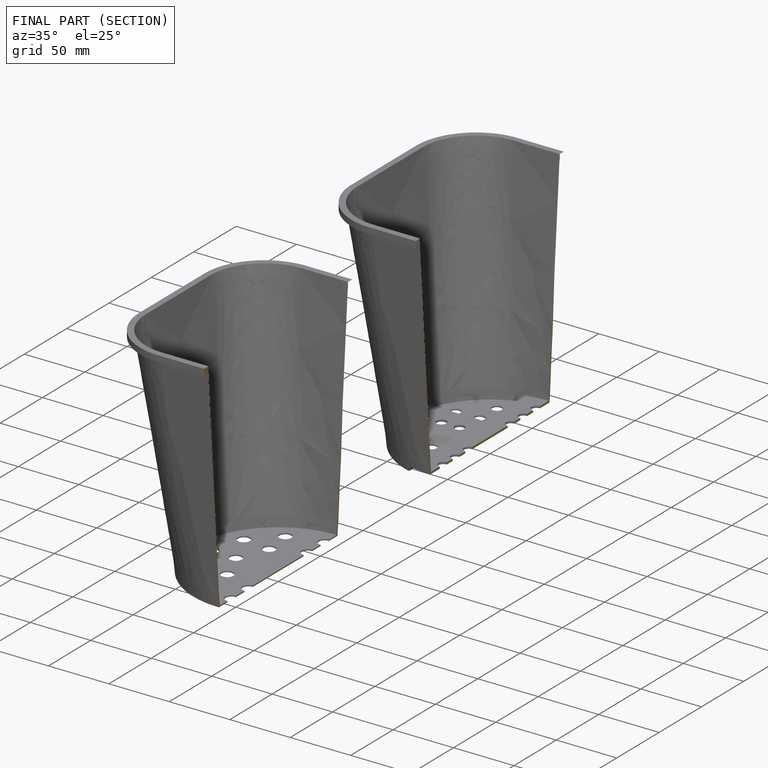
[diagram: finished part — half-section view (interior)]
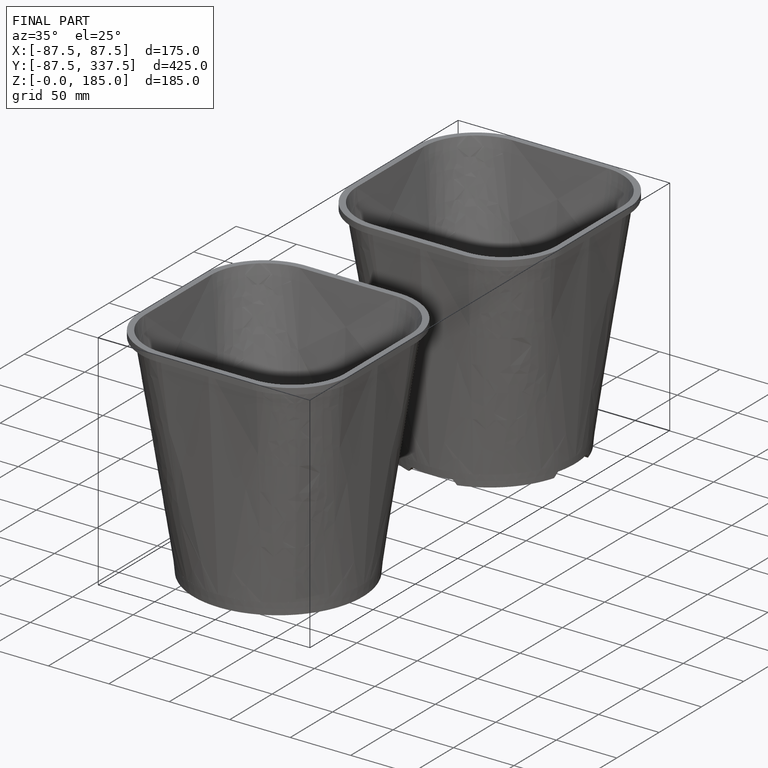
[diagram: finished part — iso view with bounding-box wireframe]
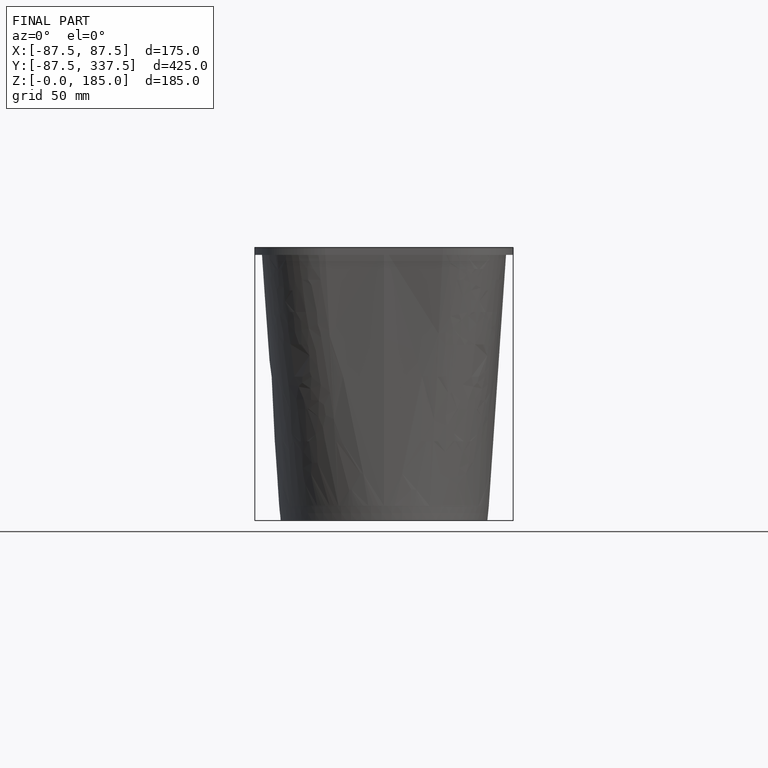
[diagram: finished part — front view with bounding-box wireframe]
